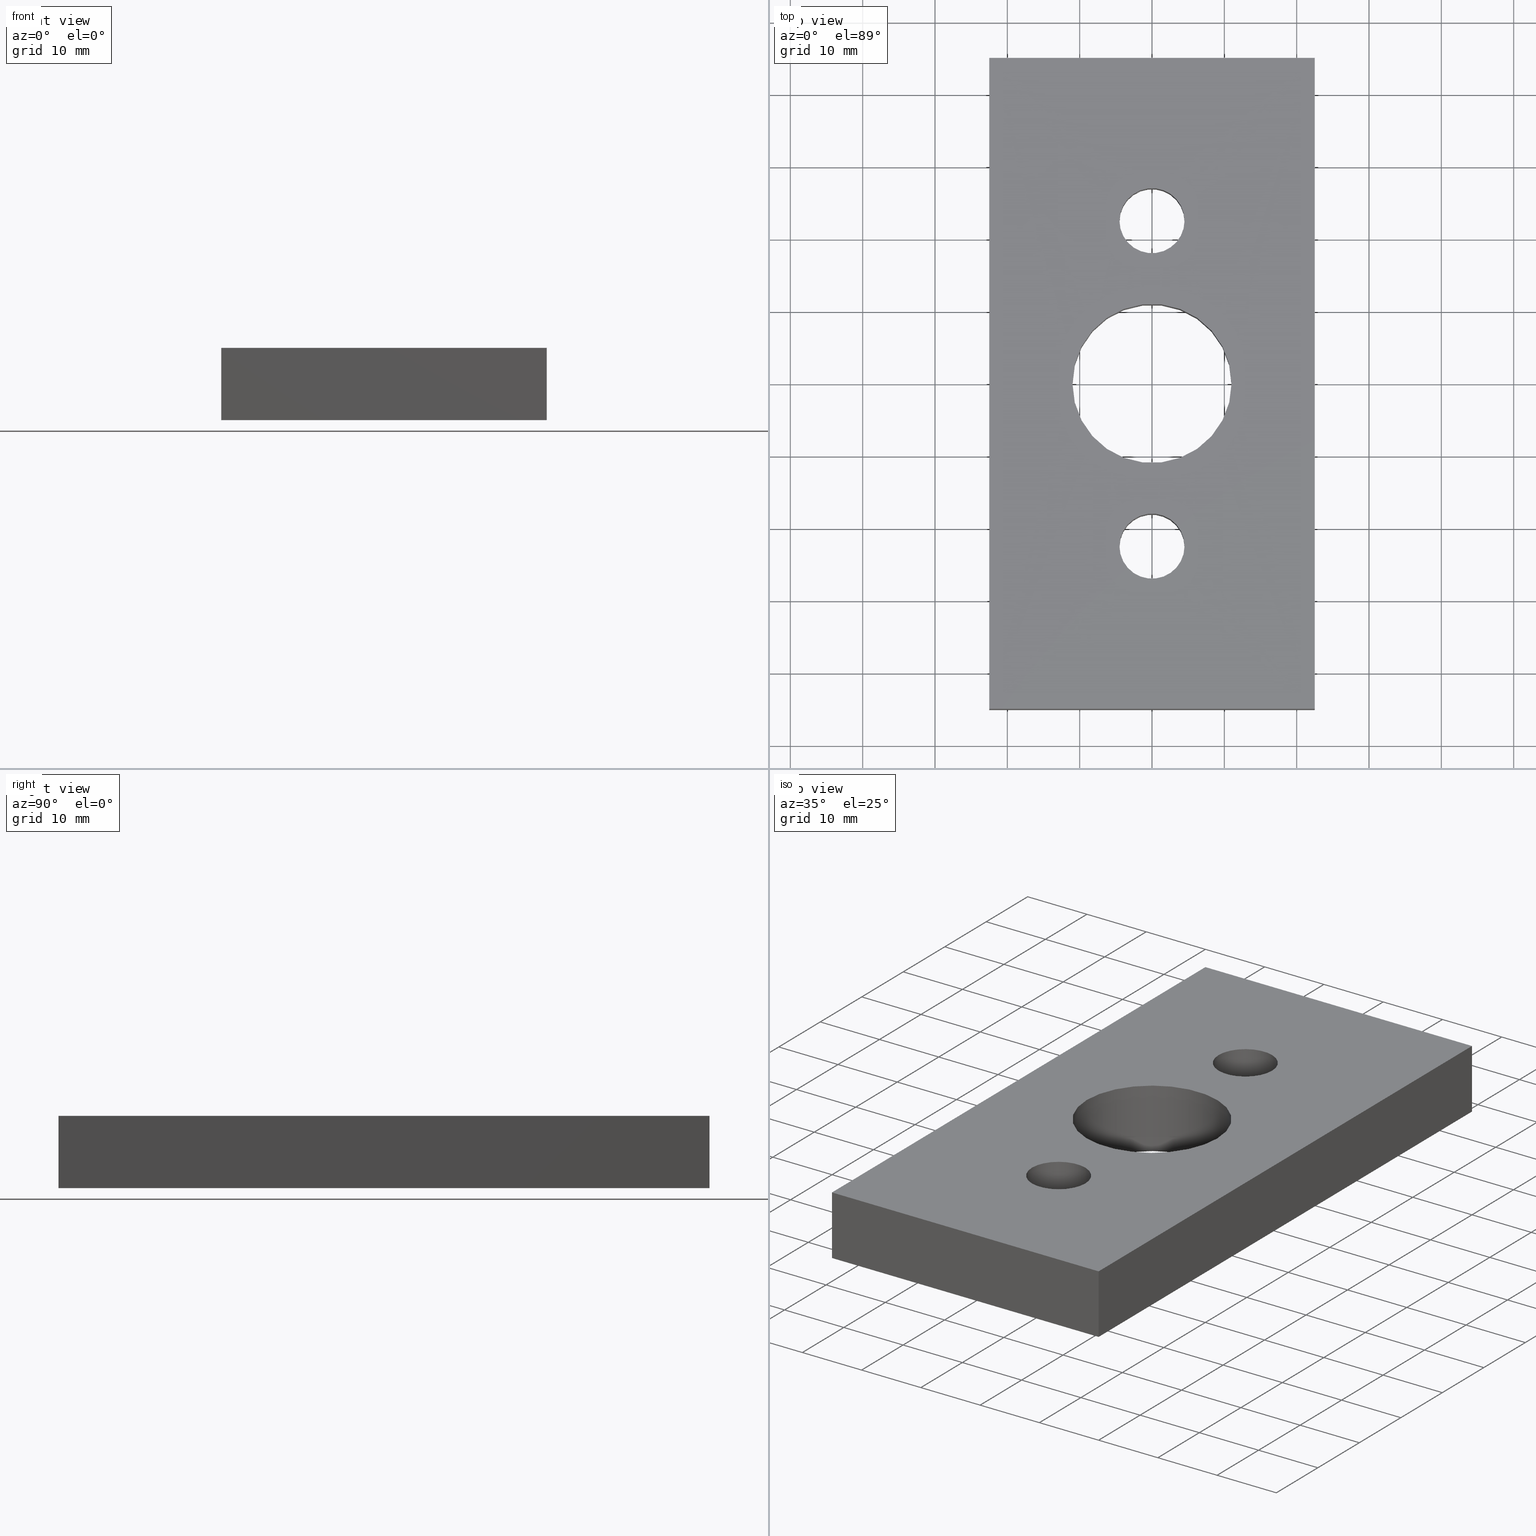
[diagram: canonical four-view strip — front | top / right | iso, engineering-drawing reading convention]
A machine part, canonical four-view strip (front | top / right | iso — engineering-drawing reading convention). The complete STEP part file that produces these views, byte-faithful:
ISO-10303-21;
HEADER;
/****************************************************************
 * Generated by software with PDE/Lib inside                    *
 * PDElib Version v4.4, created Mon 02/23/2004                  *
 * International Technegroup Inc. (www.iti-oh.com)              *
 ****************************************************************/
FILE_DESCRIPTION(('STEP AP203'),'2;1');
FILE_NAME('31.105.00.stp','2011-09-08T18:03:04',(''),(''),'2009.3.110','THINKDESIGN','');
FILE_SCHEMA(('CONFIG_CONTROL_DESIGN'));
ENDSEC;
DATA;
#2=CARTESIAN_POINT('',(22.500000000000007,45.0,0.0));
#3=DIRECTION('',(0.0,1.0,0.0));
#4=DIRECTION('',(-1.0,0.0,0.0));
#5=AXIS2_PLACEMENT_3D('',#2,#3,#4);
#6=PLANE('',#5);
#7=CARTESIAN_POINT('',(22.500000000000007,45.0,0.0));
#8=VERTEX_POINT('',#7);
#9=CARTESIAN_POINT('',(-22.499999999999993,45.0,0.0));
#10=VERTEX_POINT('',#9);
#11=CARTESIAN_POINT('',(22.500000000000007,45.0,0.0));
#12=DIRECTION('',(-1.0,0.0,0.0));
#13=VECTOR('',#12,45.0);
#14=LINE('',#11,#13);
#15=EDGE_CURVE('',#8,#10,#14,.T.);
#16=ORIENTED_EDGE('',*,*,#15,.T.);
#17=CARTESIAN_POINT('',(-22.499999999999993,45.0,10.0));
#18=VERTEX_POINT('',#17);
#19=CARTESIAN_POINT('',(-22.499999999999993,45.0,0.0));
#20=DIRECTION('',(0.0,0.0,1.0));
#21=VECTOR('',#20,10.0);
#22=LINE('',#19,#21);
#23=EDGE_CURVE('',#10,#18,#22,.T.);
#24=ORIENTED_EDGE('',*,*,#23,.T.);
#25=CARTESIAN_POINT('',(22.500000000000007,45.0,10.0));
#26=VERTEX_POINT('',#25);
#27=CARTESIAN_POINT('',(22.500000000000007,45.0,10.0));
#28=DIRECTION('',(-1.0,0.0,0.0));
#29=VECTOR('',#28,45.0);
#30=LINE('',#27,#29);
#31=EDGE_CURVE('',#26,#18,#30,.T.);
#32=ORIENTED_EDGE('',*,*,#31,.F.);
#33=CARTESIAN_POINT('',(22.500000000000007,45.0,0.0));
#34=DIRECTION('',(0.0,0.0,1.0));
#35=VECTOR('',#34,10.0);
#36=LINE('',#33,#35);
#37=EDGE_CURVE('',#8,#26,#36,.T.);
#38=ORIENTED_EDGE('',*,*,#37,.F.);
#39=EDGE_LOOP('',(#16,#24,#32,#38));
#40=FACE_OUTER_BOUND('',#39,.T.);
#41=ADVANCED_FACE('',(#40),#6,.T.);
#42=CARTESIAN_POINT('',(-22.499999999999993,45.0,0.0));
#43=DIRECTION('',(-1.0,0.0,0.0));
#44=DIRECTION('',(0.0,-1.0,0.0));
#45=AXIS2_PLACEMENT_3D('',#42,#43,#44);
#46=PLANE('',#45);
#47=CARTESIAN_POINT('',(-22.499999999999993,-45.0,0.0));
#48=VERTEX_POINT('',#47);
#49=CARTESIAN_POINT('',(-22.499999999999993,45.0,0.0));
#50=DIRECTION('',(0.0,-1.0,0.0));
#51=VECTOR('',#50,90.0);
#52=LINE('',#49,#51);
#53=EDGE_CURVE('',#10,#48,#52,.T.);
#54=ORIENTED_EDGE('',*,*,#53,.T.);
#55=CARTESIAN_POINT('',(-22.499999999999993,-45.0,10.0));
#56=VERTEX_POINT('',#55);
#57=CARTESIAN_POINT('',(-22.499999999999993,-45.0,0.0));
#58=DIRECTION('',(0.0,0.0,1.0));
#59=VECTOR('',#58,10.0);
#60=LINE('',#57,#59);
#61=EDGE_CURVE('',#48,#56,#60,.T.);
#62=ORIENTED_EDGE('',*,*,#61,.T.);
#63=CARTESIAN_POINT('',(-22.499999999999993,45.0,10.0));
#64=DIRECTION('',(0.0,-1.0,0.0));
#65=VECTOR('',#64,90.0);
#66=LINE('',#63,#65);
#67=EDGE_CURVE('',#18,#56,#66,.T.);
#68=ORIENTED_EDGE('',*,*,#67,.F.);
#69=ORIENTED_EDGE('',*,*,#23,.F.);
#70=EDGE_LOOP('',(#54,#62,#68,#69));
#71=FACE_OUTER_BOUND('',#70,.T.);
#72=ADVANCED_FACE('',(#71),#46,.T.);
#73=CARTESIAN_POINT('',(-22.499999999999993,-45.0,0.0));
#74=DIRECTION('',(0.0,-1.0,0.0));
#75=DIRECTION('',(1.0,0.0,0.0));
#76=AXIS2_PLACEMENT_3D('',#73,#74,#75);
#77=PLANE('',#76);
#78=CARTESIAN_POINT('',(22.499999999999993,-45.0,0.0));
#79=VERTEX_POINT('',#78);
#80=CARTESIAN_POINT('',(-22.499999999999993,-45.0,0.0));
#81=DIRECTION('',(1.0,0.0,0.0));
#82=VECTOR('',#81,44.999999999999986);
#83=LINE('',#80,#82);
#84=EDGE_CURVE('',#48,#79,#83,.T.);
#85=ORIENTED_EDGE('',*,*,#84,.T.);
#86=CARTESIAN_POINT('',(22.499999999999993,-45.0,10.0));
#87=VERTEX_POINT('',#86);
#88=CARTESIAN_POINT('',(22.499999999999993,-45.0,0.0));
#89=DIRECTION('',(0.0,0.0,1.0));
#90=VECTOR('',#89,10.0);
#91=LINE('',#88,#90);
#92=EDGE_CURVE('',#79,#87,#91,.T.);
#93=ORIENTED_EDGE('',*,*,#92,.T.);
#94=CARTESIAN_POINT('',(-22.499999999999993,-45.0,10.0));
#95=DIRECTION('',(1.0,0.0,0.0));
#96=VECTOR('',#95,44.999999999999986);
#97=LINE('',#94,#96);
#98=EDGE_CURVE('',#56,#87,#97,.T.);
#99=ORIENTED_EDGE('',*,*,#98,.F.);
#100=ORIENTED_EDGE('',*,*,#61,.F.);
#101=EDGE_LOOP('',(#85,#93,#99,#100));
#102=FACE_OUTER_BOUND('',#101,.T.);
#103=ADVANCED_FACE('',(#102),#77,.T.);
#104=CARTESIAN_POINT('',(22.499999999999993,-45.0,0.0));
#105=DIRECTION('',(1.0,0.0,0.0));
#106=DIRECTION('',(0.0,1.0,0.0));
#107=AXIS2_PLACEMENT_3D('',#104,#105,#106);
#108=PLANE('',#107);
#109=CARTESIAN_POINT('',(22.499999999999993,-45.0,0.0));
#110=DIRECTION('',(0.0,1.0,0.0));
#111=VECTOR('',#110,90.0);
#112=LINE('',#109,#111);
#113=EDGE_CURVE('',#79,#8,#112,.T.);
#114=ORIENTED_EDGE('',*,*,#113,.T.);
#115=ORIENTED_EDGE('',*,*,#37,.T.);
#116=CARTESIAN_POINT('',(22.499999999999993,-45.0,10.0));
#117=DIRECTION('',(0.0,1.0,0.0));
#118=VECTOR('',#117,90.0);
#119=LINE('',#116,#118);
#120=EDGE_CURVE('',#87,#26,#119,.T.);
#121=ORIENTED_EDGE('',*,*,#120,.F.);
#122=ORIENTED_EDGE('',*,*,#92,.F.);
#123=EDGE_LOOP('',(#114,#115,#121,#122));
#124=FACE_OUTER_BOUND('',#123,.T.);
#125=ADVANCED_FACE('',(#124),#108,.T.);
#126=CARTESIAN_POINT('',(-27.000001269169182,-54.000001269152264,0.0));
#127=DIRECTION('',(0.0,0.0,1.0));
#128=DIRECTION('',(1.0,0.0,0.0));
#129=AXIS2_PLACEMENT_3D('',#126,#127,#128);
#130=PLANE('',#129);
#131=ORIENTED_EDGE('',*,*,#113,.F.);
#132=ORIENTED_EDGE('',*,*,#84,.F.);
#133=ORIENTED_EDGE('',*,*,#53,.F.);
#134=ORIENTED_EDGE('',*,*,#15,.F.);
#135=EDGE_LOOP('',(#131,#132,#133,#134));
#136=FACE_OUTER_BOUND('',#135,.T.);
#137=CARTESIAN_POINT('',(-11.0,0.0,0.0));
#138=VERTEX_POINT('',#137);
#139=CARTESIAN_POINT('',(11.0,0.0,0.0));
#140=VERTEX_POINT('',#139);
#141=CARTESIAN_POINT('',(0.0,0.0,0.0));
#142=DIRECTION('',(0.0,0.0,-1.0));
#143=DIRECTION('',(1.0,0.0,0.0));
#144=AXIS2_PLACEMENT_3D('',#141,#142,#143);
#145=CIRCLE('',#144,11.0);
#146=EDGE_CURVE('',#138,#140,#145,.T.);
#147=ORIENTED_EDGE('',*,*,#146,.F.);
#148=CARTESIAN_POINT('',(0.0,0.0,0.0));
#149=DIRECTION('',(0.0,0.0,-1.0));
#150=DIRECTION('',(1.0,0.0,0.0));
#151=AXIS2_PLACEMENT_3D('',#148,#149,#150);
#152=CIRCLE('',#151,11.0);
#153=EDGE_CURVE('',#140,#138,#152,.T.);
#154=ORIENTED_EDGE('',*,*,#153,.F.);
#155=EDGE_LOOP('',(#147,#154));
#156=FACE_BOUND('',#155,.T.);
#157=CARTESIAN_POINT('',(-4.500000000000000,-22.500000000000000,0.0));
#158=VERTEX_POINT('',#157);
#159=CARTESIAN_POINT('',(4.500000000000000,-22.500000000000000,0.0));
#160=VERTEX_POINT('',#159);
#161=CARTESIAN_POINT('',(0.0,-22.500000000000000,0.0));
#162=DIRECTION('',(0.0,0.0,-1.0));
#163=DIRECTION('',(1.0,0.0,0.0));
#164=AXIS2_PLACEMENT_3D('',#161,#162,#163);
#165=CIRCLE('',#164,4.500000000000000);
#166=EDGE_CURVE('',#158,#160,#165,.T.);
#167=ORIENTED_EDGE('',*,*,#166,.F.);
#168=CARTESIAN_POINT('',(0.0,-22.500000000000000,0.0));
#169=DIRECTION('',(0.0,0.0,-1.0));
#170=DIRECTION('',(1.0,0.0,0.0));
#171=AXIS2_PLACEMENT_3D('',#168,#169,#170);
#172=CIRCLE('',#171,4.500000000000000);
#173=EDGE_CURVE('',#160,#158,#172,.T.);
#174=ORIENTED_EDGE('',*,*,#173,.F.);
#175=EDGE_LOOP('',(#167,#174));
#176=FACE_BOUND('',#175,.T.);
#177=CARTESIAN_POINT('',(-4.500000000000021,22.499999999999986,0.0));
#178=VERTEX_POINT('',#177);
#179=CARTESIAN_POINT('',(4.499999999999979,22.499999999999986,0.0));
#180=VERTEX_POINT('',#179);
#181=CARTESIAN_POINT('',(-2.131628E-014,22.499999999999986,0.0));
#182=DIRECTION('',(0.0,0.0,-1.0));
#183=DIRECTION('',(1.0,0.0,0.0));
#184=AXIS2_PLACEMENT_3D('',#181,#182,#183);
#185=CIRCLE('',#184,4.500000000000000);
#186=EDGE_CURVE('',#178,#180,#185,.T.);
#187=ORIENTED_EDGE('',*,*,#186,.F.);
#188=CARTESIAN_POINT('',(-2.131628E-014,22.499999999999986,0.0));
#189=DIRECTION('',(0.0,0.0,-1.0));
#190=DIRECTION('',(1.0,0.0,0.0));
#191=AXIS2_PLACEMENT_3D('',#188,#189,#190);
#192=CIRCLE('',#191,4.500000000000000);
#193=EDGE_CURVE('',#180,#178,#192,.T.);
#194=ORIENTED_EDGE('',*,*,#193,.F.);
#195=EDGE_LOOP('',(#187,#194));
#196=FACE_BOUND('',#195,.T.);
#197=ADVANCED_FACE('',(#136,#156,#176,#196),#130,.F.);
#198=CARTESIAN_POINT('',(-27.000001269169182,-54.000001269152264,10.0));
#199=DIRECTION('',(0.0,0.0,1.0));
#200=DIRECTION('',(1.0,0.0,0.0));
#201=AXIS2_PLACEMENT_3D('',#198,#199,#200);
#202=PLANE('',#201);
#203=ORIENTED_EDGE('',*,*,#31,.T.);
#204=ORIENTED_EDGE('',*,*,#67,.T.);
#205=ORIENTED_EDGE('',*,*,#98,.T.);
#206=ORIENTED_EDGE('',*,*,#120,.T.);
#207=EDGE_LOOP('',(#203,#204,#205,#206));
#208=FACE_OUTER_BOUND('',#207,.T.);
#209=CARTESIAN_POINT('',(-11.0,0.0,10.0));
#210=VERTEX_POINT('',#209);
#211=CARTESIAN_POINT('',(11.0,0.0,10.0));
#212=VERTEX_POINT('',#211);
#213=CARTESIAN_POINT('',(0.0,0.0,10.0));
#214=DIRECTION('',(0.0,0.0,1.0));
#215=DIRECTION('',(1.0,0.0,0.0));
#216=AXIS2_PLACEMENT_3D('',#213,#214,#215);
#217=CIRCLE('',#216,11.0);
#218=EDGE_CURVE('',#210,#212,#217,.T.);
#219=ORIENTED_EDGE('',*,*,#218,.F.);
#220=CARTESIAN_POINT('',(0.0,0.0,10.0));
#221=DIRECTION('',(0.0,0.0,1.0));
#222=DIRECTION('',(1.0,0.0,0.0));
#223=AXIS2_PLACEMENT_3D('',#220,#221,#222);
#224=CIRCLE('',#223,11.0);
#225=EDGE_CURVE('',#212,#210,#224,.T.);
#226=ORIENTED_EDGE('',*,*,#225,.F.);
#227=EDGE_LOOP('',(#219,#226));
#228=FACE_BOUND('',#227,.T.);
#229=CARTESIAN_POINT('',(-4.500000000000000,-22.500000000000000,10.0));
#230=VERTEX_POINT('',#229);
#231=CARTESIAN_POINT('',(4.500000000000000,-22.500000000000000,10.0));
#232=VERTEX_POINT('',#231);
#233=CARTESIAN_POINT('',(0.0,-22.500000000000000,10.0));
#234=DIRECTION('',(0.0,0.0,1.0));
#235=DIRECTION('',(1.0,0.0,0.0));
#236=AXIS2_PLACEMENT_3D('',#233,#234,#235);
#237=CIRCLE('',#236,4.500000000000000);
#238=EDGE_CURVE('',#230,#232,#237,.T.);
#239=ORIENTED_EDGE('',*,*,#238,.F.);
#240=CARTESIAN_POINT('',(0.0,-22.500000000000000,10.0));
#241=DIRECTION('',(0.0,0.0,1.0));
#242=DIRECTION('',(1.0,0.0,0.0));
#243=AXIS2_PLACEMENT_3D('',#240,#241,#242);
#244=CIRCLE('',#243,4.500000000000000);
#245=EDGE_CURVE('',#232,#230,#244,.T.);
#246=ORIENTED_EDGE('',*,*,#245,.F.);
#247=EDGE_LOOP('',(#239,#246));
#248=FACE_BOUND('',#247,.T.);
#249=CARTESIAN_POINT('',(-4.500000000000021,22.499999999999986,10.0));
#250=VERTEX_POINT('',#249);
#251=CARTESIAN_POINT('',(4.499999999999979,22.499999999999986,10.0));
#252=VERTEX_POINT('',#251);
#253=CARTESIAN_POINT('',(-2.131628E-014,22.499999999999986,10.0));
#254=DIRECTION('',(0.0,0.0,1.0));
#255=DIRECTION('',(1.0,0.0,0.0));
#256=AXIS2_PLACEMENT_3D('',#253,#254,#255);
#257=CIRCLE('',#256,4.500000000000000);
#258=EDGE_CURVE('',#250,#252,#257,.T.);
#259=ORIENTED_EDGE('',*,*,#258,.F.);
#260=CARTESIAN_POINT('',(-2.131628E-014,22.499999999999986,10.0));
#261=DIRECTION('',(0.0,0.0,1.0));
#262=DIRECTION('',(1.0,0.0,0.0));
#263=AXIS2_PLACEMENT_3D('',#260,#261,#262);
#264=CIRCLE('',#263,4.500000000000000);
#265=EDGE_CURVE('',#252,#250,#264,.T.);
#266=ORIENTED_EDGE('',*,*,#265,.F.);
#267=EDGE_LOOP('',(#259,#266));
#268=FACE_BOUND('',#267,.T.);
#269=ADVANCED_FACE('',(#208,#228,#248,#268),#202,.T.);
#270=CARTESIAN_POINT('',(0.0,0.0,10.0));
#271=DIRECTION('',(0.0,0.0,1.0));
#272=DIRECTION('',(1.0,0.0,0.0));
#273=AXIS2_PLACEMENT_3D('',#270,#271,#272);
#274=CYLINDRICAL_SURFACE('',#273,11.0);
#275=CARTESIAN_POINT('',(11.0,0.0,10.0));
#276=DIRECTION('',(0.0,0.0,-1.0));
#277=VECTOR('',#276,10.0);
#278=LINE('',#275,#277);
#279=EDGE_CURVE('',#212,#140,#278,.T.);
#280=ORIENTED_EDGE('',*,*,#279,.T.);
#281=ORIENTED_EDGE('',*,*,#153,.T.);
#282=ORIENTED_EDGE('',*,*,#146,.T.);
#283=ORIENTED_EDGE('',*,*,#279,.F.);
#284=ORIENTED_EDGE('',*,*,#225,.T.);
#285=ORIENTED_EDGE('',*,*,#218,.T.);
#286=EDGE_LOOP('',(#280,#281,#282,#283,#284,#285));
#287=FACE_OUTER_BOUND('',#286,.T.);
#288=ADVANCED_FACE('',(#287),#274,.F.);
#289=CARTESIAN_POINT('',(0.0,-22.500000000000000,10.0));
#290=DIRECTION('',(0.0,0.0,1.0));
#291=DIRECTION('',(1.0,0.0,0.0));
#292=AXIS2_PLACEMENT_3D('',#289,#290,#291);
#293=CYLINDRICAL_SURFACE('',#292,4.500000000000000);
#294=CARTESIAN_POINT('',(4.500000000000000,-22.500000000000000,10.0));
#295=DIRECTION('',(0.0,0.0,-1.0));
#296=VECTOR('',#295,10.0);
#297=LINE('',#294,#296);
#298=EDGE_CURVE('',#232,#160,#297,.T.);
#299=ORIENTED_EDGE('',*,*,#298,.T.);
#300=ORIENTED_EDGE('',*,*,#173,.T.);
#301=ORIENTED_EDGE('',*,*,#166,.T.);
#302=ORIENTED_EDGE('',*,*,#298,.F.);
#303=ORIENTED_EDGE('',*,*,#245,.T.);
#304=ORIENTED_EDGE('',*,*,#238,.T.);
#305=EDGE_LOOP('',(#299,#300,#301,#302,#303,#304));
#306=FACE_OUTER_BOUND('',#305,.T.);
#307=ADVANCED_FACE('',(#306),#293,.F.);
#308=CARTESIAN_POINT('',(-2.131628E-014,22.499999999999986,10.0));
#309=DIRECTION('',(0.0,0.0,1.0));
#310=DIRECTION('',(1.0,0.0,0.0));
#311=AXIS2_PLACEMENT_3D('',#308,#309,#310);
#312=CYLINDRICAL_SURFACE('',#311,4.500000000000000);
#313=CARTESIAN_POINT('',(4.499999999999979,22.499999999999986,10.0));
#314=DIRECTION('',(0.0,0.0,-1.0));
#315=VECTOR('',#314,10.0);
#316=LINE('',#313,#315);
#317=EDGE_CURVE('',#252,#180,#316,.T.);
#318=ORIENTED_EDGE('',*,*,#317,.T.);
#319=ORIENTED_EDGE('',*,*,#193,.T.);
#320=ORIENTED_EDGE('',*,*,#186,.T.);
#321=ORIENTED_EDGE('',*,*,#317,.F.);
#322=ORIENTED_EDGE('',*,*,#265,.T.);
#323=ORIENTED_EDGE('',*,*,#258,.T.);
#324=EDGE_LOOP('',(#318,#319,#320,#321,#322,#323));
#325=FACE_OUTER_BOUND('',#324,.T.);
#326=ADVANCED_FACE('',(#325),#312,.F.);
#327=CLOSED_SHELL('',(#41,#72,#103,#125,#197,#269,#288,#307,#326));
#328=MANIFOLD_SOLID_BREP('',#327);
#334=(NAMED_UNIT(*)PLANE_ANGLE_UNIT()SI_UNIT($,.RADIAN.));
#335=DIMENSIONAL_EXPONENTS(0.0,0.0,0.0,0.0,0.0,0.0,0.0);
#336=PLANE_ANGLE_MEASURE_WITH_UNIT(PLANE_ANGLE_MEASURE(0.017453292500000),#334);
#340=(CONVERSION_BASED_UNIT('DEGREE',#336)NAMED_UNIT(#335)PLANE_ANGLE_UNIT());
#344=(NAMED_UNIT(*)SI_UNIT($,.STERADIAN.)SOLID_ANGLE_UNIT());
#348=(LENGTH_UNIT()NAMED_UNIT(*)SI_UNIT(.MILLI.,.METRE.));
#350=UNCERTAINTY_MEASURE_WITH_UNIT(LENGTH_MEASURE(0.001000000000000),#348,'DISTANCE_ACCURACY_VALUE','');
#352=(GEOMETRIC_REPRESENTATION_CONTEXT(3)GLOBAL_UNCERTAINTY_ASSIGNED_CONTEXT((#350))GLOBAL_UNIT_ASSIGNED_CONTEXT((#340,#344,#348))REPRESENTATION_CONTEXT('thinkdesign','2009.3.110'));
#353=ADVANCED_BREP_SHAPE_REPRESENTATION('',(#328),#352);
#354=APPLICATION_CONTEXT('configuration controlled 3D designs of mechanical parts and assemblies');
#355=APPLICATION_PROTOCOL_DEFINITION('International Standard','config_control_design',1995,#354);
#356=MECHANICAL_CONTEXT('None',#354,'mechanical');
#357=PRODUCT('None','None','None',(#356));
#358=PRODUCT_RELATED_PRODUCT_CATEGORY('detail',$,(#357));
#359=PRODUCT_CATEGORY('part',$);
#360=PRODUCT_CATEGORY_RELATIONSHIP('None','None',#359,#358);
#361=PERSON('PERSON1','None','None',$,$,$);
#362=ORGANIZATION('','None','None');
#363=PERSON_AND_ORGANIZATION(#361,#362);
#364=PERSON_AND_ORGANIZATION_ROLE('design_owner');
#365=CC_DESIGN_PERSON_AND_ORGANIZATION_ASSIGNMENT(#363,#364,(#357));
#366=PRODUCT_DEFINITION_FORMATION_WITH_SPECIFIED_SOURCE('None','None',#357,.NOT_KNOWN.);
#367=PERSON('PERSON2','None','None',$,$,$);
#368=ORGANIZATION('','None','None');
#369=PERSON_AND_ORGANIZATION(#367,#368);
#370=PERSON_AND_ORGANIZATION_ROLE('creator');
#371=CC_DESIGN_PERSON_AND_ORGANIZATION_ASSIGNMENT(#369,#370,(#366));
#372=PERSON('PERSON3','None','None',$,$,$);
#373=ORGANIZATION('','None','None');
#374=PERSON_AND_ORGANIZATION(#372,#373);
#375=PERSON_AND_ORGANIZATION_ROLE('part_supplier');
#376=CC_DESIGN_PERSON_AND_ORGANIZATION_ASSIGNMENT(#374,#375,(#366));
#377=APPROVAL_STATUS('approved');
#378=APPROVAL(#377,'None');
#379=PERSON('PERSON4','None','None',$,$,$);
#380=ORGANIZATION('','None','None');
#381=PERSON_AND_ORGANIZATION(#379,#380);
#382=APPROVAL_ROLE('None');
#383=APPROVAL_PERSON_ORGANIZATION(#381,#378,#382);
#384=CALENDAR_DATE(2011,8,9);
#385=COORDINATED_UNIVERSAL_TIME_OFFSET(0,0,.AHEAD.);
#386=LOCAL_TIME(18,3,4.0,#385);
#387=DATE_AND_TIME(#384,#386);
#388=APPROVAL_DATE_TIME(#387,#378);
#389=CC_DESIGN_APPROVAL(#378,(#366));
#390=SECURITY_CLASSIFICATION_LEVEL('unclassified');
#391=SECURITY_CLASSIFICATION('None','None',#390);
#392=CC_DESIGN_SECURITY_CLASSIFICATION(#391,(#366));
#393=APPROVAL_STATUS('approved');
#394=APPROVAL(#393,'None');
#395=PERSON('PERSON5','None','None',$,$,$);
#396=ORGANIZATION('','None','None');
#397=PERSON_AND_ORGANIZATION(#395,#396);
#398=APPROVAL_ROLE('None');
#399=APPROVAL_PERSON_ORGANIZATION(#397,#394,#398);
#400=CALENDAR_DATE(2011,8,9);
#401=COORDINATED_UNIVERSAL_TIME_OFFSET(0,0,.AHEAD.);
#402=LOCAL_TIME(18,3,4.0,#401);
#403=DATE_AND_TIME(#400,#402);
#404=APPROVAL_DATE_TIME(#403,#394);
#405=CC_DESIGN_APPROVAL(#394,(#391));
#406=PERSON('PERSON6','None','None',$,$,$);
#407=ORGANIZATION('','None','None');
#408=PERSON_AND_ORGANIZATION(#406,#407);
#409=PERSON_AND_ORGANIZATION_ROLE('classification_officer');
#410=CC_DESIGN_PERSON_AND_ORGANIZATION_ASSIGNMENT(#408,#409,(#391));
#411=DATE_TIME_ROLE('classification_date');
#412=CALENDAR_DATE(2011,8,9);
#413=COORDINATED_UNIVERSAL_TIME_OFFSET(0,0,.AHEAD.);
#414=LOCAL_TIME(18,3,4.0,#413);
#415=DATE_AND_TIME(#412,#414);
#416=CC_DESIGN_DATE_AND_TIME_ASSIGNMENT(#415,#411,(#391));
#417=DESIGN_CONTEXT('part definition',#354,'design');
#418=DOCUMENT_TYPE('cad_filename');
#419=DOCUMENT('None','None','None',#418);
#420=PRODUCT_DEFINITION_WITH_ASSOCIATED_DOCUMENTS('None','None',#366,#417,(#419));
#421=PERSON('PERSON7','None','None',$,$,$);
#422=ORGANIZATION('','None','None');
#423=PERSON_AND_ORGANIZATION(#421,#422);
#424=PERSON_AND_ORGANIZATION_ROLE('creator');
#425=CC_DESIGN_PERSON_AND_ORGANIZATION_ASSIGNMENT(#423,#424,(#420));
#426=DATE_TIME_ROLE('creation_date');
#427=CALENDAR_DATE(2011,8,9);
#428=COORDINATED_UNIVERSAL_TIME_OFFSET(0,0,.AHEAD.);
#429=LOCAL_TIME(18,3,4.0,#428);
#430=DATE_AND_TIME(#427,#429);
#431=CC_DESIGN_DATE_AND_TIME_ASSIGNMENT(#430,#426,(#420));
#432=APPROVAL_STATUS('approved');
#433=APPROVAL(#432,'None');
#434=PERSON('PERSON8','None','None',$,$,$);
#435=ORGANIZATION('','None','None');
#436=PERSON_AND_ORGANIZATION(#434,#435);
#437=APPROVAL_ROLE('None');
#438=APPROVAL_PERSON_ORGANIZATION(#436,#433,#437);
#439=CALENDAR_DATE(2011,8,9);
#440=COORDINATED_UNIVERSAL_TIME_OFFSET(0,0,.AHEAD.);
#441=LOCAL_TIME(18,3,4.0,#440);
#442=DATE_AND_TIME(#439,#441);
#443=APPROVAL_DATE_TIME(#442,#433);
#444=CC_DESIGN_APPROVAL(#433,(#420));
#445=PRODUCT_DEFINITION_SHAPE('None','None',#420);
#446=SHAPE_DEFINITION_REPRESENTATION(#445,#353);
#447=DIMENSIONAL_EXPONENTS(0.0,0.0,0.0,0.0,0.0,0.0,0.0);
#448=DIMENSIONAL_EXPONENTS(1.0,0.0,0.0,0.0,0.0,0.0,0.0);
ENDSEC;
END-ISO-10303-21;
